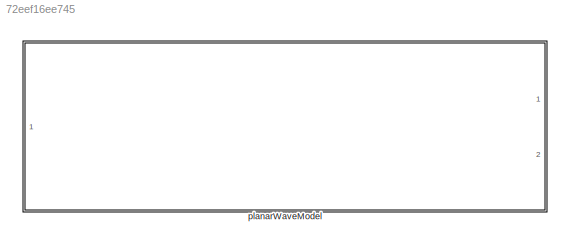
MODEL slx_72eef16ee745
KIND library
CONFIG AbsTol = auto
CONFIG EnableMultiTasking = off
CONFIG FixedStep = auto
CONFIG MaxStep = auto
CONFIG MinStep = auto
CONFIG RelTol = 1e-3
CONFIG SampleTimeConstraint = Unconstrained
CONFIG SolverName = VariableStepAuto
CONFIG StartTime = 0.0
CONFIG StopTime = 10.0
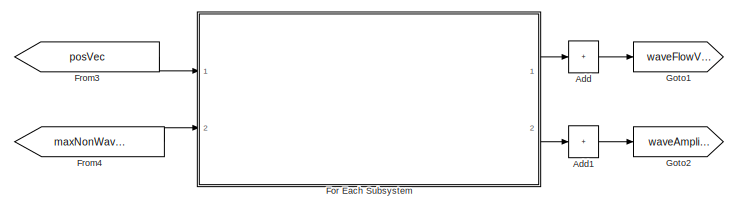
[diagram: planarWaveModel - part 1/3, top left region]
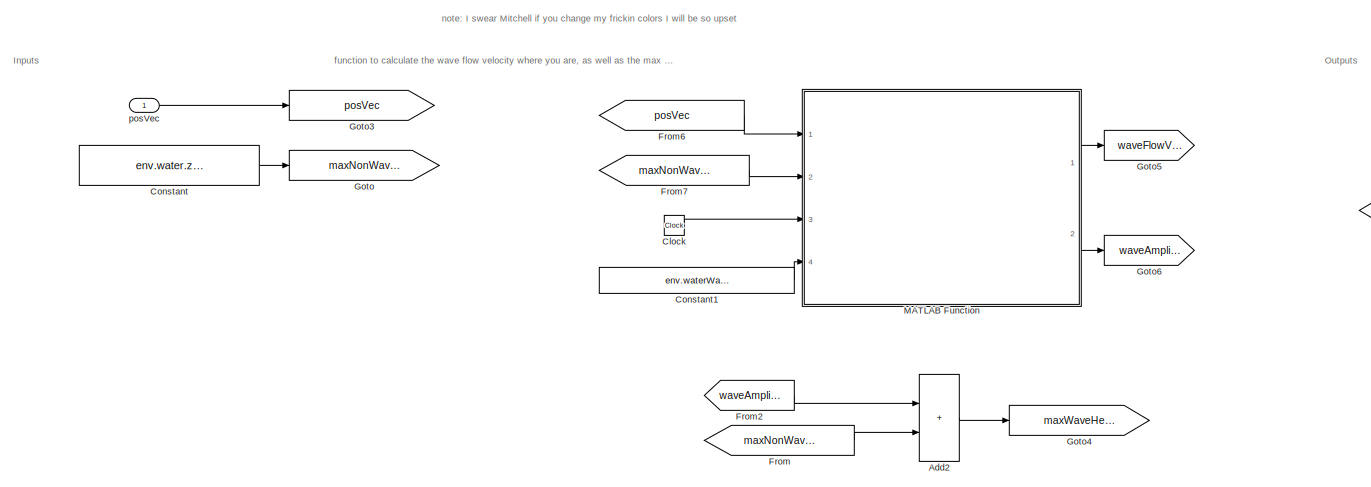
[diagram: planarWaveModel - part 2/3, bottom center region]
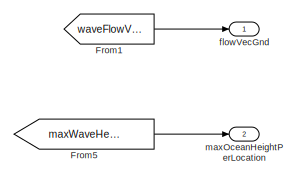
[diagram: planarWaveModel - part 3/3, middle right region]
BLOCK [SubSystem] planarWaveModel
  Ports = [1, 2]
  RequestExecContextInheritance = off
BLOCK [Sum] planarWaveModel/Add
  Commented = on
  IconShape = rectangular
  Inputs = +
  Ports = [1, 1]
BLOCK [Sum] planarWaveModel/Add1
  Commented = on
  IconShape = rectangular
  Inputs = +
  Ports = [1, 1]
BLOCK [Sum] planarWaveModel/Add2
  IconShape = rectangular
  Ports = [2, 1]
BLOCK [Clock] planarWaveModel/Clock
BLOCK [Constant] planarWaveModel/Constant
  Value = env.water.zGridPoints.Value(end)
BLOCK [Constant] planarWaveModel/Constant1
  Value = env.waterWave.waveParamMat.Value
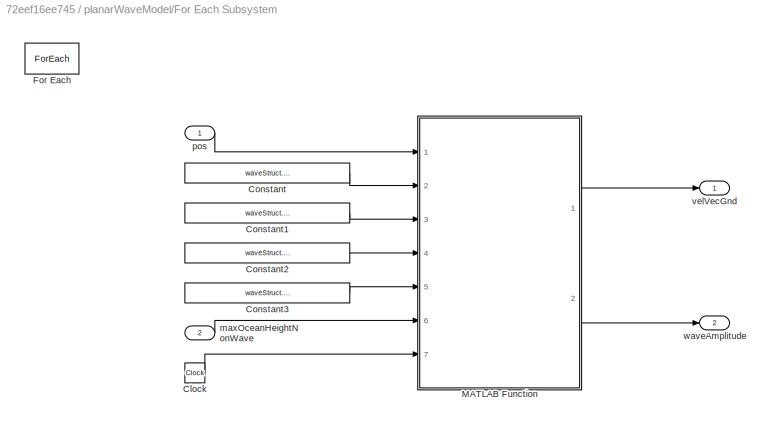
BLOCK [SubSystem] planarWaveModel/For Each Subsystem
  Commented = on
  Ports = [2, 2]
  RequestExecContextInheritance = off
  TreatAsAtomicUnit = on
BLOCK [Clock] planarWaveModel/For Each Subsystem/Clock
BLOCK [Constant] planarWaveModel/For Each Subsystem/Constant
  Value = waveStruct.waveNumber
BLOCK [Constant] planarWaveModel/For Each Subsystem/Constant1
  Value = waveStruct.frequency
BLOCK [Constant] planarWaveModel/For Each Subsystem/Constant2
  Value = waveStruct.amplitude
BLOCK [Constant] planarWaveModel/For Each Subsystem/Constant3
  Value = waveStruct.phase
BLOCK [ForEach] planarWaveModel/For Each Subsystem/For Each
  DisableCoverage = on
  IterateSubsysMaskParameter = on
  Ports = []
  SubsysMaskParameterIterationDimension = 2
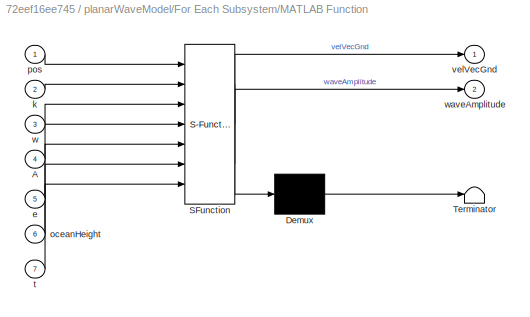
BLOCK [SubSystem] planarWaveModel/For Each Subsystem/MATLAB Function
  ErrorFcn = Stateflow.Translate.translate
  PermitHierarchicalResolution = ExplicitOnly
  Ports = [7, 2]
  RequestExecContextInheritance = off
  SFBlockType = MATLAB Function
  TreatAsAtomicUnit = on
BLOCK [Demux] planarWaveModel/For Each Subsystem/MATLAB Function/ Demux 
  Outputs = 1
  Ports = [1, 1]
BLOCK [S-Function] planarWaveModel/For Each Subsystem/MATLAB Function/ SFunction 
  EnableBusSupport = off
  FunctionName = sf_sfun
  PortCounts = [7 3]
  Ports = [7, 3]
  SFcnIsStateOwnerBlock = off
  SFunctionDeploymentMode = off
  Tag = Stateflow S-Function 11
BLOCK [Terminator] planarWaveModel/For Each Subsystem/MATLAB Function/ Terminator 
BLOCK [Inport] planarWaveModel/For Each Subsystem/MATLAB Function/A
  Port = 4
BLOCK [Inport] planarWaveModel/For Each Subsystem/MATLAB Function/e
  Port = 5
BLOCK [Inport] planarWaveModel/For Each Subsystem/MATLAB Function/k
  Port = 2
BLOCK [Inport] planarWaveModel/For Each Subsystem/MATLAB Function/oceanHeight
  Port = 6
BLOCK [Inport] planarWaveModel/For Each Subsystem/MATLAB Function/pos
BLOCK [Inport] planarWaveModel/For Each Subsystem/MATLAB Function/t
  Port = 7
BLOCK [Outport] planarWaveModel/For Each Subsystem/MATLAB Function/velVecGnd
  VectorParamsAs1DForOutWhenUnconnected = off
BLOCK [Inport] planarWaveModel/For Each Subsystem/MATLAB Function/w
  Port = 3
BLOCK [Outport] planarWaveModel/For Each Subsystem/MATLAB Function/waveAmplitude
  Port = 2
  VectorParamsAs1DForOutWhenUnconnected = off
BLOCK [Inport] planarWaveModel/For Each Subsystem/maxOceanHeightNonWave 
  Port = 2
BLOCK [Inport] planarWaveModel/For Each Subsystem/pos 
BLOCK [Outport] planarWaveModel/For Each Subsystem/velVecGnd 
  ConcatenationDimension = 1
  VectorParamsAs1DForOutWhenUnconnected = off
BLOCK [Outport] planarWaveModel/For Each Subsystem/waveAmplitude
  ConcatenationDimension = 1
  Port = 2
  VectorParamsAs1DForOutWhenUnconnected = off
BLOCK [From] planarWaveModel/From
  GotoTag = maxNonWaveOceanHeight
BLOCK [From] planarWaveModel/From1
  GotoTag = waveFlowVecGnd
BLOCK [From] planarWaveModel/From2
  GotoTag = waveAmplitude
BLOCK [From] planarWaveModel/From3
  Commented = on
  GotoTag = posVec
BLOCK [From] planarWaveModel/From4
  Commented = on
  GotoTag = maxNonWaveOceanHeight
BLOCK [From] planarWaveModel/From5
  GotoTag = maxWaveHeightPerLocation
BLOCK [From] planarWaveModel/From6
  GotoTag = posVec
BLOCK [From] planarWaveModel/From7
  GotoTag = maxNonWaveOceanHeight
BLOCK [Goto] planarWaveModel/Goto
  GotoTag = maxNonWaveOceanHeight
BLOCK [Goto] planarWaveModel/Goto1
  Commented = on
  GotoTag = waveFlowVecGnd
BLOCK [Goto] planarWaveModel/Goto2
  Commented = on
  GotoTag = waveAmplitude
BLOCK [Goto] planarWaveModel/Goto3
  GotoTag = posVec
BLOCK [Goto] planarWaveModel/Goto4
  GotoTag = maxWaveHeightPerLocation
BLOCK [Goto] planarWaveModel/Goto5
  GotoTag = waveFlowVecGnd
BLOCK [Goto] planarWaveModel/Goto6
  GotoTag = waveAmplitude
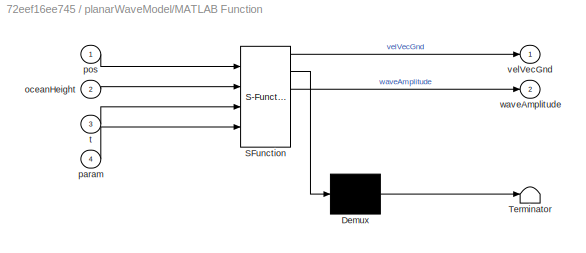
BLOCK [SubSystem] planarWaveModel/MATLAB Function
  ErrorFcn = Stateflow.Translate.translate
  PermitHierarchicalResolution = ExplicitOnly
  Ports = [4, 2]
  RequestExecContextInheritance = off
  SFBlockType = MATLAB Function
  TreatAsAtomicUnit = on
BLOCK [Demux] planarWaveModel/MATLAB Function/ Demux 
  Outputs = 1
  Ports = [1, 1]
BLOCK [S-Function] planarWaveModel/MATLAB Function/ SFunction 
  EnableBusSupport = off
  FunctionName = sf_sfun
  PortCounts = [4 3]
  Ports = [4, 3]
  SFcnIsStateOwnerBlock = off
  SFunctionDeploymentMode = off
  Tag = Stateflow S-Function 12
BLOCK [Terminator] planarWaveModel/MATLAB Function/ Terminator 
BLOCK [Inport] planarWaveModel/MATLAB Function/oceanHeight
  Port = 2
BLOCK [Inport] planarWaveModel/MATLAB Function/param
  Port = 4
BLOCK [Inport] planarWaveModel/MATLAB Function/pos
BLOCK [Inport] planarWaveModel/MATLAB Function/t
  Port = 3
BLOCK [Outport] planarWaveModel/MATLAB Function/velVecGnd
  VectorParamsAs1DForOutWhenUnconnected = off
BLOCK [Outport] planarWaveModel/MATLAB Function/waveAmplitude
  Port = 2
  VectorParamsAs1DForOutWhenUnconnected = off
BLOCK [Outport] planarWaveModel/flowVecGnd 
  VectorParamsAs1DForOutWhenUnconnected = off
BLOCK [Outport] planarWaveModel/maxOceanHeightPerLocation
  Port = 2
  VectorParamsAs1DForOutWhenUnconnected = off
BLOCK [Inport] planarWaveModel/posVec
ANNOTATION planarWaveModel: note: I swear Mitchell if you change my frickin colors I will be so upset
ANNOTATION planarWaveModel: Inputs
ANNOTATION planarWaveModel: Outputs
ANNOTATION planarWaveModel: function to calculate the wave flow velocity where you are, as well as the max wave height at your location
LINE planarWaveModel/Add1:1 -> planarWaveModel/Goto2:1
LINE planarWaveModel/Add2:1 -> planarWaveModel/Goto4:1
LINE planarWaveModel/Add:1 -> planarWaveModel/Goto1:1
LINE planarWaveModel/Clock:1 -> planarWaveModel/MATLAB Function:3
LINE planarWaveModel/Constant1:1 -> planarWaveModel/MATLAB Function:4
LINE planarWaveModel/Constant:1 -> planarWaveModel/Goto:1
LINE planarWaveModel/For Each Subsystem/Clock:1 -> planarWaveModel/For Each Subsystem/MATLAB Function:7
LINE planarWaveModel/For Each Subsystem/Constant1:1 -> planarWaveModel/For Each Subsystem/MATLAB Function:3
LINE planarWaveModel/For Each Subsystem/Constant2:1 -> planarWaveModel/For Each Subsystem/MATLAB Function:4
LINE planarWaveModel/For Each Subsystem/Constant3:1 -> planarWaveModel/For Each Subsystem/MATLAB Function:5
LINE planarWaveModel/For Each Subsystem/Constant:1 -> planarWaveModel/For Each Subsystem/MATLAB Function:2
LINE planarWaveModel/For Each Subsystem/MATLAB Function:1 -> planarWaveModel/For Each Subsystem/velVecGnd :1
LINE planarWaveModel/For Each Subsystem/MATLAB Function:2 -> planarWaveModel/For Each Subsystem/waveAmplitude:1
LINE planarWaveModel/For Each Subsystem/maxOceanHeightNonWave :1 -> planarWaveModel/For Each Subsystem/MATLAB Function:6
LINE planarWaveModel/For Each Subsystem/pos :1 -> planarWaveModel/For Each Subsystem/MATLAB Function:1
LINE planarWaveModel/For Each Subsystem:1 -> planarWaveModel/Add:1
LINE planarWaveModel/For Each Subsystem:2 -> planarWaveModel/Add1:1
LINE planarWaveModel/From1:1 -> planarWaveModel/flowVecGnd :1
LINE planarWaveModel/From2:1 -> planarWaveModel/Add2:1
LINE planarWaveModel/From3:1 -> planarWaveModel/For Each Subsystem:1
LINE planarWaveModel/From4:1 -> planarWaveModel/For Each Subsystem:2
LINE planarWaveModel/From5:1 -> planarWaveModel/maxOceanHeightPerLocation:1
LINE planarWaveModel/From6:1 -> planarWaveModel/MATLAB Function:1
LINE planarWaveModel/From7:1 -> planarWaveModel/MATLAB Function:2
LINE planarWaveModel/From:1 -> planarWaveModel/Add2:2
LINE planarWaveModel/MATLAB Function:1 -> planarWaveModel/Goto5:1
LINE planarWaveModel/MATLAB Function:2 -> planarWaveModel/Goto6:1
LINE planarWaveModel/posVec:1 -> planarWaveModel/Goto3:1
CHART planarWaveModel/For Each
Subsystem/MATLAB Function states=1 transitions=1
  STATE_LABEL 'eML_blk_kernel()'
  STATE_LABEL "SCRIPT:\nfunction [velVecGnd, waveAmplitude] = fcn(pos, k, w, A, e, oceanHeight,t)\n\n% change your current position to be measure from the surf\npos = pos - [0,0,oceanHeight]';\n\n% calculate ocean height at yout position\nwaveAmplitude = A*cos(k*pos(1) - w*t + e);\n\n% calculate the wave velocity at your location\nxVel =  w*A*exp(k*pos(3)).*cos(k*pos(1) - w*t + e);\nzVel  = w*A*exp(k*pos(3)).*sin(k*pos(1) ...<+109ch>"
CHART planarWaveModel/MATLAB Function states=1 transitions=1
  STATE_LABEL 'eML_blk_kernel()'
  STATE_LABEL "SCRIPT:\nfunction [velVecGnd, waveAmplitude] = fcn(pos,oceanHeight,t,param)\n\n\n\n    \n% change your current position to be measure from the surf\npos = pos - [0,0,oceanHeight]';\n\n% calculate ocean height at yout position\nwaveAmplitude = sum(param(:,3).*cos(param(:,1).*pos(1) - param(:,2)*t + param(:,4)),1);\n\n% calculate the wave velocity at your location\nxVel  = sum(param(:,2).*param(:,3).*exp(param(:...<+282ch>"
CHART  states=0 transitions=0
CHART  states=0 transitions=0
